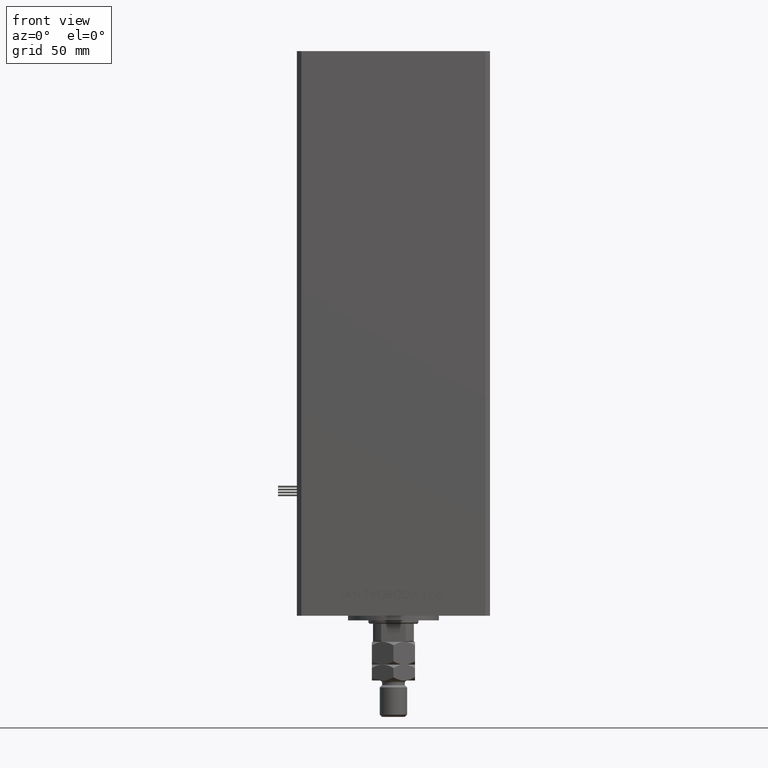
[diagram: clean part render]
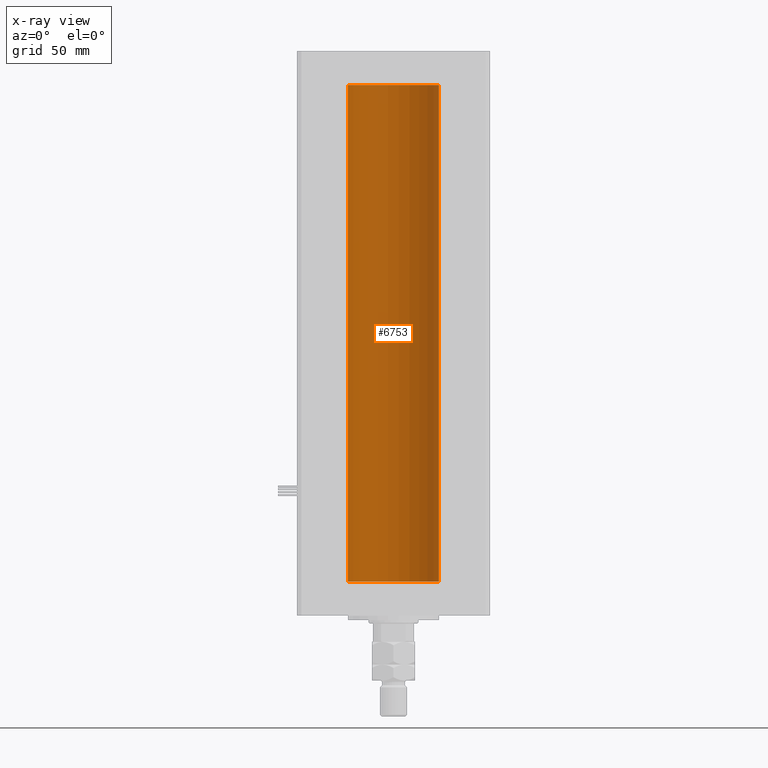
[diagram: x-ray — body ghosted, one internal face saturated and labeled with its STEP entity id]
A machine part, front view, then the same camera in x-ray: the body is ghosted and one INTERNAL B-rep face — a face not visible from any outside direction — is saturated and labeled: STEP entity #6753.
In plain terms, the highlighted cylindrical surface (partial cylindrical patch) has radius 20 mm, axis along (-0, -0, -1).
Its self-contained STEP definition (entity closure, byte-faithful):
#611 = VERTEX_POINT ( 'NONE', #28180 ) ;
#1648 = ORIENTED_EDGE ( 'NONE', *, *, #28665, .F. ) ;
#4143 = EDGE_CURVE ( 'NONE', #611, #30835, #27630, .T. ) ;
#5551 = CARTESIAN_POINT ( 'NONE',  ( 20.00000000000000000, 2.449293598294706513E-15, 218.5000000000000000 ) ) ;
#6753 = ADVANCED_FACE ( 'NONE', ( #42250 ), #9479, .F. ) ;
#7660 = EDGE_LOOP ( 'NONE', ( #1648, #38272, #22399, #53388 ) ) ;
#9479 = CYLINDRICAL_SURFACE ( 'NONE', #38877, 20.00000000000000000 ) ;
#11158 = EDGE_CURVE ( 'NONE', #30835, #34904, #19605, .T. ) ;
#12579 = DIRECTION ( 'NONE',  ( 1.000000000000000000, 0.000000000000000000, 0.000000000000000000 ) ) ;
#18280 = DIRECTION ( 'NONE',  ( -0.000000000000000000, -0.000000000000000000, -1.000000000000000000 ) ) ;
#18670 = CARTESIAN_POINT ( 'NONE',  ( 0.000000000000000000, 0.000000000000000000, 218.5000000000000000 ) ) ;
#19605 = LINE ( 'NONE', #19868, #36457 ) ;
#19868 = CARTESIAN_POINT ( 'NONE',  ( -20.00000000000000000, 0.000000000000000000, 218.5000000000000000 ) ) ;
#20693 = DIRECTION ( 'NONE',  ( -0.000000000000000000, 0.000000000000000000, 1.000000000000000000 ) ) ;
#21444 = AXIS2_PLACEMENT_3D ( 'NONE', #42881, #42611, #47194 ) ;
#22399 = ORIENTED_EDGE ( 'NONE', *, *, #11158, .T. ) ;
#26792 = DIRECTION ( 'NONE',  ( -1.000000000000000000, 0.000000000000000000, 0.000000000000000000 ) ) ;
#27630 = CIRCLE ( 'NONE', #28469, 20.00000000000000000 ) ;
#28180 = CARTESIAN_POINT ( 'NONE',  ( 20.00000000000000000, 2.449293598294706513E-15, 218.5000000000000000 ) ) ;
#28469 = AXIS2_PLACEMENT_3D ( 'NONE', #32616, #20693, #12579 ) ;
#28665 = EDGE_CURVE ( 'NONE', #611, #31497, #29660, .T. ) ;
#29660 = LINE ( 'NONE', #5551, #46419 ) ;
#30835 = VERTEX_POINT ( 'NONE', #50971 ) ;
#30837 = EDGE_CURVE ( 'NONE', #31497, #34904, #31787, .T. ) ;
#31065 = CARTESIAN_POINT ( 'NONE',  ( -20.00000000000000000, 0.000000000000000000, 0.000000000000000000 ) ) ;
#31497 = VERTEX_POINT ( 'NONE', #52286 ) ;
#31787 = CIRCLE ( 'NONE', #21444, 20.00000000000000000 ) ;
#32616 = CARTESIAN_POINT ( 'NONE',  ( 0.000000000000000000, 0.000000000000000000, 218.5000000000000000 ) ) ;
#34389 = DIRECTION ( 'NONE',  ( -0.000000000000000000, -0.000000000000000000, -1.000000000000000000 ) ) ;
#34904 = VERTEX_POINT ( 'NONE', #31065 ) ;
#36120 = DIRECTION ( 'NONE',  ( -0.000000000000000000, -0.000000000000000000, -1.000000000000000000 ) ) ;
#36457 = VECTOR ( 'NONE', #36120, 1000.000000000000000 ) ;
#38272 = ORIENTED_EDGE ( 'NONE', *, *, #4143, .T. ) ;
#38877 = AXIS2_PLACEMENT_3D ( 'NONE', #18670, #34389, #26792 ) ;
#42250 = FACE_OUTER_BOUND ( 'NONE', #7660, .T. ) ;
#42611 = DIRECTION ( 'NONE',  ( -0.000000000000000000, 0.000000000000000000, 1.000000000000000000 ) ) ;
#42881 = CARTESIAN_POINT ( 'NONE',  ( 0.000000000000000000, 0.000000000000000000, 0.000000000000000000 ) ) ;
#46419 = VECTOR ( 'NONE', #18280, 1000.000000000000000 ) ;
#47194 = DIRECTION ( 'NONE',  ( 1.000000000000000000, 0.000000000000000000, 0.000000000000000000 ) ) ;
#50971 = CARTESIAN_POINT ( 'NONE',  ( -20.00000000000000000, 0.000000000000000000, 218.5000000000000000 ) ) ;
#52286 = CARTESIAN_POINT ( 'NONE',  ( 20.00000000000000000, 2.449293598294706513E-15, 0.000000000000000000 ) ) ;
#53388 = ORIENTED_EDGE ( 'NONE', *, *, #30837, .F. ) ;